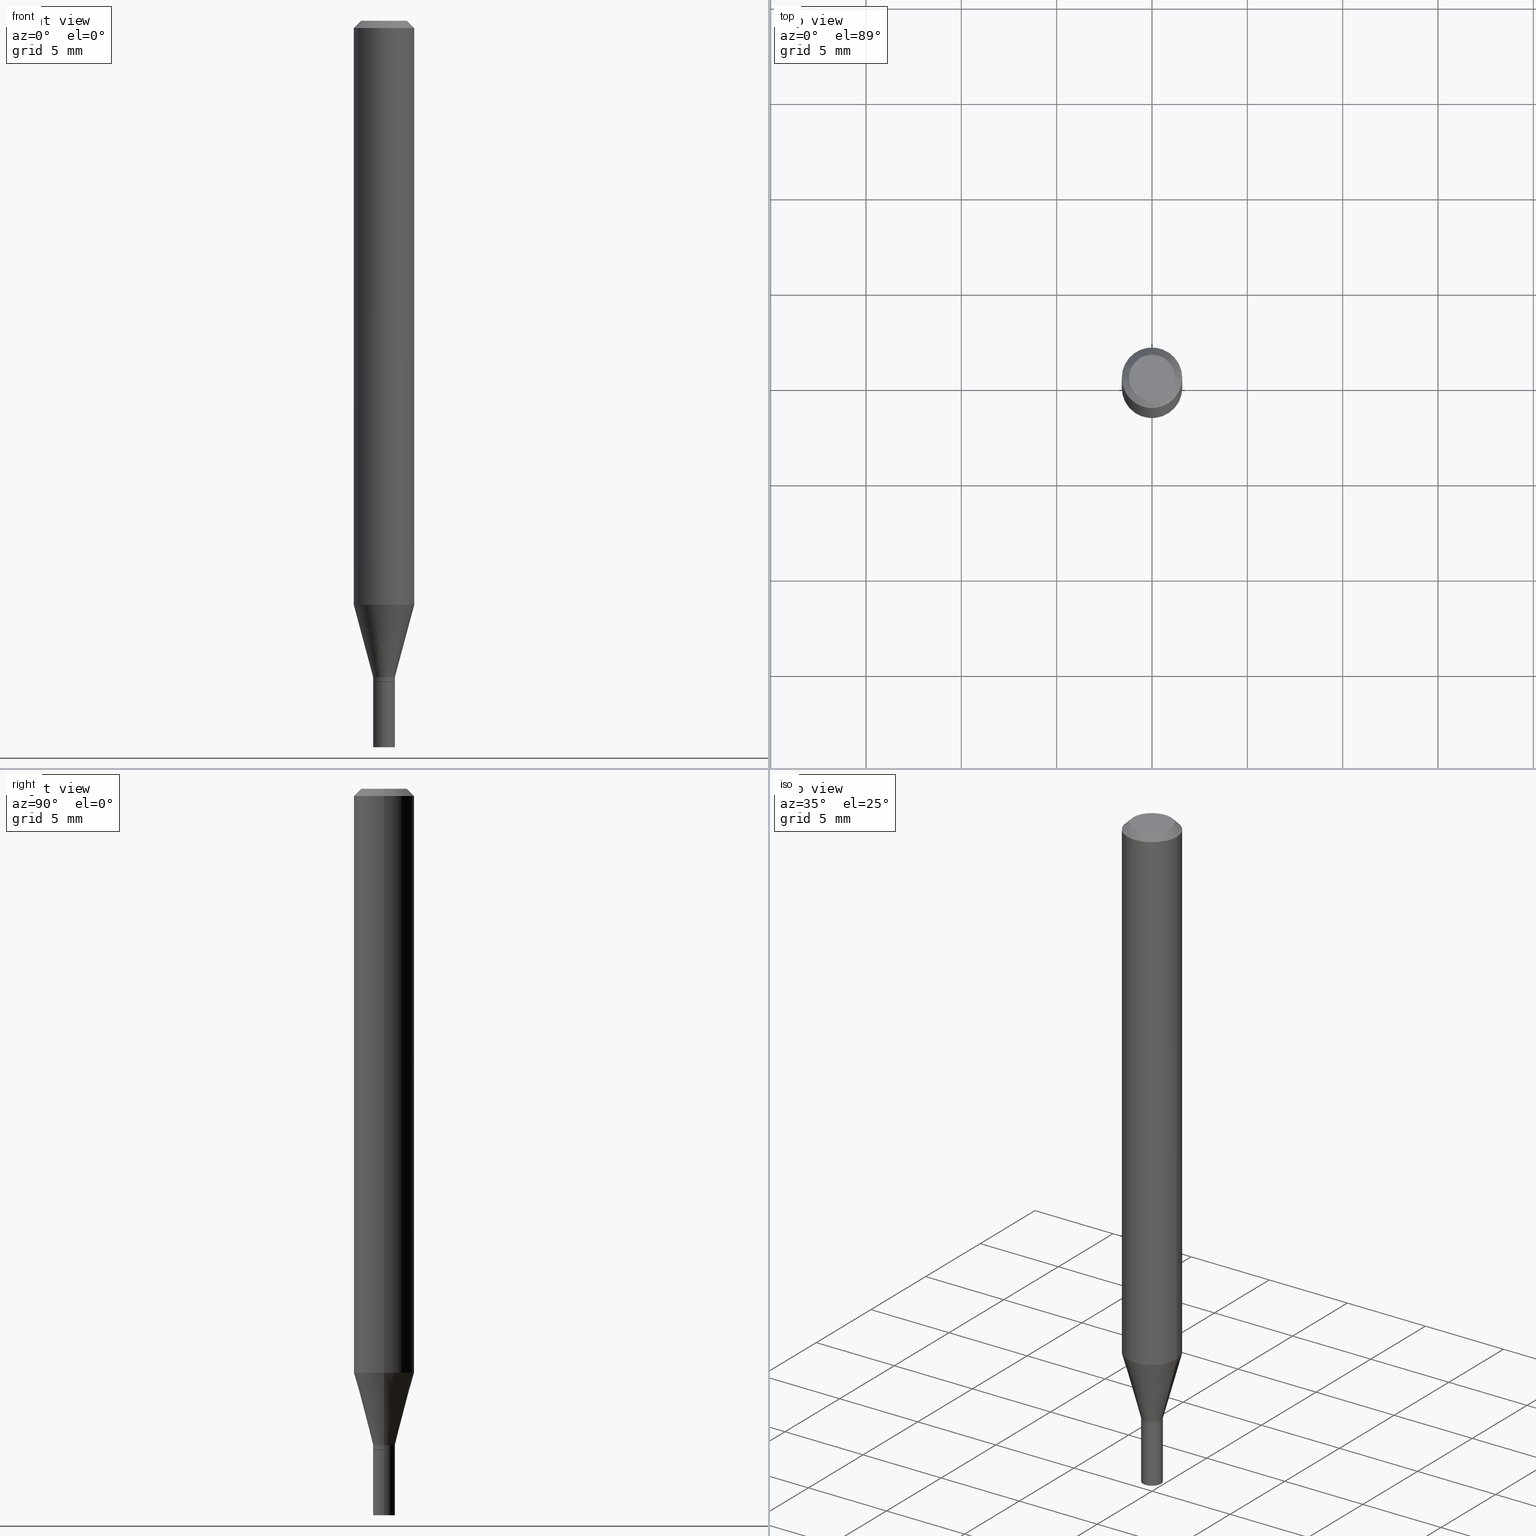
[diagram: canonical four-view strip — front | top / right | iso, engineering-drawing reading convention]
A machine part, canonical four-view strip (front | top / right | iso — engineering-drawing reading convention). The complete STEP part file that produces these views, byte-faithful:
ISO-10303-21;
HEADER;
FILE_DESCRIPTION (( 'STEP AP203' ),
    '1' );
FILE_NAME ('00554.STEP',
    '2024-03-19T21:40:30',
    ( '' ),
    ( '' ),
    'SwSTEP 2.0',
    'SolidWorks 2023',
    '' );
FILE_SCHEMA (( 'CONFIG_CONTROL_DESIGN' ));
ENDSEC;

DATA;
#1 = VERTEX_POINT ( 'NONE', #156 ) ;
#2 = PERSON_AND_ORGANIZATION_ROLE ( 'design_supplier' ) ;
#3 = EDGE_CURVE ( 'NONE', #340, #231, #24, .T. ) ;
#4 = ORIENTED_EDGE ( 'NONE', *, *, #193, .T. ) ;
#5 = AXIS2_PLACEMENT_3D ( 'NONE', #267, #11, #194 ) ;
#6 = VECTOR ( 'NONE', #94, 39.37007874015748143 ) ;
#7 = ORIENTED_EDGE ( 'NONE', *, *, #466, .T. ) ;
#8 = EDGE_LOOP ( 'NONE', ( #183, #265, #376, #180 ) ) ;
#9 = CALENDAR_DATE ( 2024, 19, 3 ) ;
#10 = FACE_OUTER_BOUND ( 'NONE', #90, .T. ) ;
#11 = DIRECTION ( 'NONE',  ( -2.445468806185136597E-29, 3.491481338843145583E-15, 1.000000000000000000 ) ) ;
#12 = CONICAL_SURFACE ( 'NONE', #5, 0.02199999999999999872, 0.7853981633974739252 ) ;
#13 = DIRECTION ( 'NONE',  ( -0.7071067811865656694, 7.493145998870420424E-15, 0.7071067811865294761 ) ) ;
#14 = VECTOR ( 'NONE', #192, 39.37007874015747433 ) ;
#15 = EDGE_CURVE ( 'NONE', #231, #340, #145, .T. ) ;
#16 = VERTEX_POINT ( 'NONE', #337 ) ;
#17 = DIRECTION ( 'NONE',  ( 1.000000000000000000, -6.982962677686266711E-15, 4.876176775795935793E-29 ) ) ;
#18 = CARTESIAN_POINT ( 'NONE',  ( 0.02249999999999999917, -4.922988687768834913E-15, -1.364999999999999991 ) ) ;
#19 = CARTESIAN_POINT ( 'NONE',  ( 2.948545679060551070E-29, -4.209741784122813615E-15, -1.205717967697245152 ) ) ;
#20 = ORIENTED_EDGE ( 'NONE', *, *, #79, .T. ) ;
#21 = DATE_TIME_ROLE ( 'classification_date' ) ;
#22 = DIRECTION ( 'NONE',  ( -2.445468806185136597E-29, 3.491481338843145583E-15, 1.000000000000000000 ) ) ;
#23 = PRODUCT ( '00554', '00554', '', ( #331 ) ) ;
#24 = CIRCLE ( 'NONE', #426, 0.02199999999999999872 ) ;
#25 = AXIS2_PLACEMENT_3D ( 'NONE', #61, #172, #422 ) ;
#26 = CARTESIAN_POINT ( 'NONE',  ( 3.338064920442711836E-29, -4.765872027520893280E-15, -1.364999999999999991 ) ) ;
#27 = DIRECTION ( 'NONE',  ( 1.000000000000000000, -6.982962677686249356E-15, 0.000000000000000000 ) ) ;
#28 = APPLICATION_CONTEXT ( 'configuration controlled 3d designs of mechanical parts and assemblies' ) ;
#29 = DIRECTION ( 'NONE',  ( -2.445468806185136597E-29, 3.491481338843145583E-15, 1.000000000000000000 ) ) ;
#30 = DIRECTION ( 'NONE',  ( -2.445468806185136597E-29, 3.491481338843145583E-15, 1.000000000000000000 ) ) ;
#31 = DESIGN_CONTEXT ( 'detailed design', #176, 'design' ) ;
#32 = ORIENTED_EDGE ( 'NONE', *, *, #263, .T. ) ;
#33 = ADVANCED_FACE ( 'NONE', ( #115 ), #262, .T. ) ;
#34 = AXIS2_PLACEMENT_3D ( 'NONE', #19, #447, #444 ) ;
#35 = ORIENTED_EDGE ( 'NONE', *, *, #175, .T. ) ;
#36 = APPROVAL ( #182, 'UNSPECIFIED' ) ;
#37 = ORIENTED_EDGE ( 'NONE', *, *, #160, .T. ) ;
#38 = ORIENTED_EDGE ( 'NONE', *, *, #358, .F. ) ;
#39 = APPROVAL_STATUS ( 'not_yet_approved' ) ;
#40 = VERTEX_POINT ( 'NONE', #381 ) ;
#41 = APPROVAL_DATE_TIME ( #442, #154 ) ;
#42 = CC_DESIGN_PERSON_AND_ORGANIZATION_ASSIGNMENT ( #259, #463, ( #23 ) ) ;
#43 = VERTEX_POINT ( 'NONE', #334 ) ;
#44 = LENGTH_MEASURE_WITH_UNIT ( LENGTH_MEASURE( 0.02539999999999999897 ), #330 );
#45 = LOCAL_TIME ( 17, 40, 30.00000000000000000, #48 ) ;
#46 = CC_DESIGN_SECURITY_CLASSIFICATION ( #386, ( #102 ) ) ;
#47 = ORIENTED_EDGE ( 'NONE', *, *, #466, .F. ) ;
#48 = COORDINATED_UNIVERSAL_TIME_OFFSET ( 5, 0, .BEHIND. ) ;
#49 = CARTESIAN_POINT ( 'NONE',  ( 3.668203209277705088E-31, -5.237222008264718399E-17, -0.01499999999999999944 ) ) ;
#50 = ORIENTED_EDGE ( 'NONE', *, *, #341, .T. ) ;
#51 = DIRECTION ( 'NONE',  ( -2.438088387897960049E-29, 3.491481338843145188E-15, 1.000000000000000000 ) ) ;
#52 = FACE_OUTER_BOUND ( 'NONE', #141, .T. ) ;
#53 = CIRCLE ( 'NONE', #336, 0.06250000000000000000 ) ;
#54 = DIRECTION ( 'NONE',  ( 1.000000000000000000, -6.982962677686265922E-15, 4.876176775795935793E-29 ) ) ;
#55 = CARTESIAN_POINT ( 'NONE',  ( -0.06250000000000001388, -3.765652574272750998E-15, -1.205717967697245152 ) ) ;
#56 = PLANE ( 'NONE',  #67 ) ;
#57 = CYLINDRICAL_SURFACE ( 'NONE', #238, 0.06250000000000000000 ) ;
#58 = FACE_OUTER_BOUND ( 'NONE', #134, .T. ) ;
#59 = PLANE ( 'NONE',  #461 ) ;
#60 = FACE_OUTER_BOUND ( 'NONE', #8, .T. ) ;
#61 = CARTESIAN_POINT ( 'NONE',  ( 3.668203209277705088E-31, -5.237222008264718399E-17, -0.01499999999999999944 ) ) ;
#62 = ADVANCED_FACE ( 'NONE', ( #122 ), #57, .T. ) ;
#63 = LINE ( 'NONE', #260, #328 ) ;
#64 = DIRECTION ( 'NONE',  ( -0.7071067811865420216, 2.468850131082199474E-15, -0.7071067811865530128 ) ) ;
#65 = CARTESIAN_POINT ( 'NONE',  ( 3.336842186039619034E-29, -4.764126286851473355E-15, -1.364500000000000046 ) ) ;
#66 = CLOSED_SHELL ( 'NONE', ( #374, #299, #440, #446 ) ) ;
#67 = AXIS2_PLACEMENT_3D ( 'NONE', #302, #164, #450 ) ;
#68 = VERTEX_POINT ( 'NONE', #55 ) ;
#69 = ORIENTED_EDGE ( 'NONE', *, *, #235, .F. ) ;
#70 = CIRCLE ( 'NONE', #445, 0.02249999999999992284 ) ;
#71 = ORIENTED_EDGE ( 'NONE', *, *, #124, .T. ) ;
#72 = VERTEX_POINT ( 'NONE', #18 ) ;
#73 = DIRECTION ( 'NONE',  ( 0.2588190451025213501, 1.565188264969621968E-15, 0.9659258262890682012 ) ) ;
#74 = EDGE_LOOP ( 'NONE', ( #435, #364, #443, #448 ) ) ;
#75 = DIRECTION ( 'NONE',  ( -2.445468806185136597E-29, 3.491481338843145583E-15, 1.000000000000000000 ) ) ;
#76 = DIRECTION ( 'NONE',  ( 0.000000000000000000, 0.000000000000000000, 1.000000000000000000 ) ) ;
#77 = VECTOR ( 'NONE', #64, 39.37007874015748143 ) ;
#78 = DIRECTION ( 'NONE',  ( 1.000000000000000000, -6.982962677686266711E-15, 4.876176775795935793E-29 ) ) ;
#79 = EDGE_CURVE ( 'NONE', #108, #318, #225, .T. ) ;
#80 = DATE_TIME_ROLE ( 'creation_date' ) ;
#81 = DIRECTION ( 'NONE',  ( 1.000000000000000000, -6.982962677686265922E-15, 4.876176775795935793E-29 ) ) ;
#82 = CARTESIAN_POINT ( 'NONE',  ( 0.000000000000000000, 0.000000000000000000, 0.000000000000000000 ) ) ;
#83 = CC_DESIGN_DATE_AND_TIME_ASSIGNMENT ( #123, #21, ( #386 ) ) ;
#84 = DIRECTION ( 'NONE',  ( 1.000000000000000000, -6.982962677686269077E-15, 0.000000000000000000 ) ) ;
#85 = ORIENTED_EDGE ( 'NONE', *, *, #399, .F. ) ;
#86 = DIRECTION ( 'NONE',  ( -2.445468806185136597E-29, 3.491481338843145583E-15, 1.000000000000000000 ) ) ;
#87 = CIRCLE ( 'NONE', #418, 0.02249999999999991937 ) ;
#88 = DIRECTION ( 'NONE',  ( 1.000000000000000000, -6.982962677686270655E-15, 0.000000000000000000 ) ) ;
#89 = CARTESIAN_POINT ( 'NONE',  ( 3.668203209277704895E-29, -5.237222008264718177E-15, -1.500000000000000222 ) ) ;
#90 = EDGE_LOOP ( 'NONE', ( #465, #283 ) ) ;
#91 = CARTESIAN_POINT ( 'NONE',  ( 3.338064920442711836E-29, -4.765872027520893280E-15, -1.364999999999999991 ) ) ;
#92 = CARTESIAN_POINT ( 'NONE',  ( 0.000000000000000000, 0.000000000000000000, 0.000000000000000000 ) ) ;
#93 = CARTESIAN_POINT ( 'NONE',  ( 0.000000000000000000, 0.000000000000000000, 0.000000000000000000 ) ) ;
#94 = DIRECTION ( 'NONE',  ( -2.445468806185136877E-29, 3.491481338843145188E-15, 1.000000000000000000 ) ) ;
#95 = DIMENSIONAL_EXPONENTS ( 1.000000000000000000, 0.000000000000000000, 0.000000000000000000, 0.000000000000000000, 0.000000000000000000, 0.000000000000000000, 0.000000000000000000 ) ;
#96 = CYLINDRICAL_SURFACE ( 'NONE', #178, 0.06250000000000000000 ) ;
#97 = ADVANCED_FACE ( 'NONE', ( #52 ), #451, .T. ) ;
#98 = FACE_OUTER_BOUND ( 'NONE', #177, .T. ) ;
#99 = CARTESIAN_POINT ( 'NONE',  ( 3.313610232380860851E-29, -4.730957214132463209E-15, -1.355000000000000204 ) ) ;
#100 = LINE ( 'NONE', #462, #185 ) ;
#101 = PERSON_AND_ORGANIZATION ( #342, #393 ) ;
#102 = PRODUCT_DEFINITION_FORMATION_WITH_SPECIFIED_SOURCE ( 'ANY', '', #23, .NOT_KNOWN. ) ;
#103 = PRODUCT_RELATED_PRODUCT_CATEGORY ( 'detail', '', ( #23 ) ) ;
#104 = EDGE_LOOP ( 'NONE', ( #415, #50, #437, #360 ) ) ;
#105 = ADVANCED_FACE ( 'NONE', ( #126 ), #12, .T. ) ;
#106 = EDGE_LOOP ( 'NONE', ( #152, #433, #7, #306 ) ) ;
#107 = AXIS2_PLACEMENT_3D ( 'NONE', #227, #274, #222 ) ;
#108 = VERTEX_POINT ( 'NONE', #296 ) ;
#109 = SECURITY_CLASSIFICATION_LEVEL ( 'unclassified' ) ;
#110 = ORIENTED_EDGE ( 'NONE', *, *, #241, .F. ) ;
#111 = APPROVAL_ROLE ( '' ) ;
#112 = VERTEX_POINT ( 'NONE', #159 ) ;
#113 = COORDINATED_UNIVERSAL_TIME_OFFSET ( 5, 0, .BEHIND. ) ;
#114 = EDGE_CURVE ( 'NONE', #68, #108, #53, .T. ) ;
#115 = FACE_OUTER_BOUND ( 'NONE', #165, .T. ) ;
#116 = CC_DESIGN_APPROVAL ( #36, ( #102 ) ) ;
#117 = DIRECTION ( 'NONE',  ( -2.445468806185136597E-29, 3.491481338843145583E-15, 1.000000000000000000 ) ) ;
#118 = EDGE_CURVE ( 'NONE', #439, #356, #268, .T. ) ;
#119 = ORIENTED_EDGE ( 'NONE', *, *, #399, .T. ) ;
#120 = APPROVAL_DATE_TIME ( #449, #284 ) ;
#121 = FACE_OUTER_BOUND ( 'NONE', #106, .T. ) ;
#122 = FACE_OUTER_BOUND ( 'NONE', #362, .T. ) ;
#123 = DATE_AND_TIME ( #133, #270 ) ;
#124 = EDGE_CURVE ( 'NONE', #72, #112, #353, .T. ) ;
#125 = CARTESIAN_POINT ( 'NONE',  ( -0.02249999999999999917, -4.841674902346784228E-15, -1.500000000000000222 ) ) ;
#126 = FACE_OUTER_BOUND ( 'NONE', #104, .T. ) ;
#127 = AXIS2_PLACEMENT_3D ( 'NONE', #385, #135, #317 ) ;
#128 = CARTESIAN_POINT ( 'NONE',  ( -0.02199999999999999872, -4.609552625653671101E-15, -1.364999999999999991 ) ) ;
#129 = ORIENTED_EDGE ( 'NONE', *, *, #278, .T. ) ;
#130 = APPROVAL_STATUS ( 'not_yet_approved' ) ;
#131 = CARTESIAN_POINT ( 'NONE',  ( 3.313610232380860851E-29, -4.730957214132463209E-15, -1.355000000000000204 ) ) ;
#132 = DIRECTION ( 'NONE',  ( -2.445468806185136597E-29, 3.491481338843145583E-15, 1.000000000000000000 ) ) ;
#133 = CALENDAR_DATE ( 2024, 19, 3 ) ;
#134 = EDGE_LOOP ( 'NONE', ( #38, #211 ) ) ;
#135 = DIRECTION ( 'NONE',  ( -2.445468806185136597E-29, 3.491481338843145583E-15, 1.000000000000000000 ) ) ;
#136 = CIRCLE ( 'NONE', #347, 0.02249999999999992284 ) ;
#137 = DIRECTION ( 'NONE',  ( 1.000000000000000000, -6.982962677686245411E-15, 0.000000000000000000 ) ) ;
#138 = CC_DESIGN_PERSON_AND_ORGANIZATION_ASSIGNMENT ( #370, #2, ( #102 ) ) ;
#139 = CARTESIAN_POINT ( 'NONE',  ( 3.313610232380860851E-29, -4.730957214132463209E-15, -1.355000000000000204 ) ) ;
#140 = AXIS2_PLACEMENT_3D ( 'NONE', #49, #295, #411 ) ;
#141 = EDGE_LOOP ( 'NONE', ( #143, #37, #321, #441 ) ) ;
#142 = EDGE_LOOP ( 'NONE', ( #188, #404, #291, #110 ) ) ;
#143 = ORIENTED_EDGE ( 'NONE', *, *, #247, .T. ) ;
#144 =( CONVERSION_BASED_UNIT ( 'INCH', #44 ) LENGTH_UNIT ( ) NAMED_UNIT ( #95 ) );
#145 = CIRCLE ( 'NONE', #146, 0.02199999999999999872 ) ;
#146 = AXIS2_PLACEMENT_3D ( 'NONE', #293, #307, #257 ) ;
#147 = AXIS2_PLACEMENT_3D ( 'NONE', #230, #51, #54 ) ;
#148 = EDGE_LOOP ( 'NONE', ( #323, #4, #329, #85 ) ) ;
#149 = PERSON_AND_ORGANIZATION_ROLE ( 'creator' ) ;
#150 = ORIENTED_EDGE ( 'NONE', *, *, #355, .F. ) ;
#151 = APPLICATION_PROTOCOL_DEFINITION ( 'international standard', 'config_control_design', 1994, #28 ) ;
#152 = ORIENTED_EDGE ( 'NONE', *, *, #429, .F. ) ;
#153 = DIRECTION ( 'NONE',  ( 1.000000000000000000, 0.000000000000000000, 0.000000000000000000 ) ) ;
#154 = APPROVAL ( #39, 'UNSPECIFIED' ) ;
#155 = CARTESIAN_POINT ( 'NONE',  ( 3.338064920442711836E-29, -4.765872027520893280E-15, -1.364999999999999991 ) ) ;
#156 = CARTESIAN_POINT ( 'NONE',  ( -0.06250000000000000000, -1.686967792252667731E-15, -0.01499999999999999944 ) ) ;
#157 = CC_DESIGN_APPROVAL ( #284, ( #386 ) ) ;
#158 = DIRECTION ( 'NONE',  ( 1.000000000000000000, -6.982962677686248567E-15, 0.000000000000000000 ) ) ;
#159 = CARTESIAN_POINT ( 'NONE',  ( -0.02249999999999999917, -4.841674902346784228E-15, -1.364999999999999991 ) ) ;
#160 = EDGE_CURVE ( 'NONE', #16, #356, #456, .T. ) ;
#161 = APPROVAL_ROLE ( '' ) ;
#162 = CARTESIAN_POINT ( 'NONE',  ( -0.02249999999999991937, -4.168368836429595565E-15, -1.355000000000000204 ) ) ;
#163 = DIRECTION ( 'NONE',  ( -2.445468806185136877E-29, 3.491481338843145188E-15, 1.000000000000000000 ) ) ;
#164 = DIRECTION ( 'NONE',  ( 2.438088387897960049E-29, -3.491481338843145188E-15, -1.000000000000000000 ) ) ;
#165 = EDGE_LOOP ( 'NONE', ( #248, #129, #402, #357 ) ) ;
#166 = LOCAL_TIME ( 17, 40, 30.00000000000000000, #113 ) ;
#167 = PLANE ( 'NONE',  #147 ) ;
#168 = DIRECTION ( 'NONE',  ( 0.7071067811865420216, -7.319954787623237113E-15, -0.7071067811865530128 ) ) ;
#169 = DIRECTION ( 'NONE',  ( 0.7071067811865656694, -2.468850131082446387E-15, 0.7071067811865294761 ) ) ;
#170 = PERSON_AND_ORGANIZATION ( #342, #393 ) ;
#171 = ADVANCED_FACE ( 'NONE', ( #428 ), #460, .T. ) ;
#172 = DIRECTION ( 'NONE',  ( 2.445468806185136597E-29, -3.491481338843145583E-15, -1.000000000000000000 ) ) ;
#173 = CARTESIAN_POINT ( 'NONE',  ( 0.02199999999999999872, -4.919497206429991117E-15, -1.364999999999999991 ) ) ;
#174 = CARTESIAN_POINT ( 'NONE',  ( -0.06250000000000000000, 3.840629472727444916E-16, -0.01499999999999999944 ) ) ;
#175 = EDGE_CURVE ( 'NONE', #397, #216, #375, .T. ) ;
#176 = APPLICATION_CONTEXT ( 'configuration controlled 3d designs of mechanical parts and assemblies' ) ;
#177 = EDGE_LOOP ( 'NONE', ( #454, #35, #119, #344 ) ) ;
#178 = AXIS2_PLACEMENT_3D ( 'NONE', #237, #29, #311 ) ;
#179 = LOCAL_TIME ( 17, 40, 30.00000000000000000, #312 ) ;
#180 = ORIENTED_EDGE ( 'NONE', *, *, #355, .T. ) ;
#181 = ORIENTED_EDGE ( 'NONE', *, *, #278, .F. ) ;
#182 = APPROVAL_STATUS ( 'not_yet_approved' ) ;
#183 = ORIENTED_EDGE ( 'NONE', *, *, #434, .F. ) ;
#184 = CALENDAR_DATE ( 2024, 19, 3 ) ;
#185 = VECTOR ( 'NONE', #390, 39.37007874015748143 ) ;
#186 = CIRCLE ( 'NONE', #229, 0.06250000000000000000 ) ;
#187 = EDGE_CURVE ( 'NONE', #231, #43, #276, .T. ) ;
#188 = ORIENTED_EDGE ( 'NONE', *, *, #263, .F. ) ;
#189 = ADVANCED_BREP_SHAPE_REPRESENTATION ( '00554', ( #396, #409, #453 ), #432 ) ;
#190 = PRODUCT_DEFINITION ( 'UNKNOWN', '', #102, #31 ) ;
#191 = DIRECTION ( 'NONE',  ( -2.445468806185136877E-29, 3.491481338843145188E-15, 1.000000000000000000 ) ) ;
#192 = DIRECTION ( 'NONE',  ( -0.2588190451025213501, 5.211531920934551042E-15, 0.9659258262890682012 ) ) ;
#193 = EDGE_CURVE ( 'NONE', #397, #112, #100, .T. ) ;
#194 = DIRECTION ( 'NONE',  ( 1.000000000000000000, -6.982962677686245411E-15, 0.000000000000000000 ) ) ;
#195 = DIRECTION ( 'NONE',  ( -2.445468806185136597E-29, 3.491481338843145583E-15, 1.000000000000000000 ) ) ;
#196 = DIRECTION ( 'NONE',  ( -2.438088387897960049E-29, 3.491481338843145188E-15, 1.000000000000000000 ) ) ;
#197 = ORIENTED_EDGE ( 'NONE', *, *, #217, .T. ) ;
#198 = DIRECTION ( 'NONE',  ( -2.445468806185136597E-29, 3.491481338843145583E-15, 1.000000000000000000 ) ) ;
#199 = LINE ( 'NONE', #221, #251 ) ;
#200 = CARTESIAN_POINT ( 'NONE',  ( -0.04749999999999999362, 3.578768372314215436E-16, 2.340532281875096216E-16 ) ) ;
#201 = ADVANCED_FACE ( 'NONE', ( #60 ), #308, .T. ) ;
#202 = APPROVAL_PERSON_ORGANIZATION ( #101, #36, #326 ) ;
#203 = DIRECTION ( 'NONE',  ( 1.000000000000000000, -6.982962677686248567E-15, 0.000000000000000000 ) ) ;
#204 = DIRECTION ( 'NONE',  ( 1.000000000000000000, -6.982962677686249356E-15, 0.000000000000000000 ) ) ;
#205 = ADVANCED_FACE ( 'NONE', ( #350 ), #96, .T. ) ;
#206 = DIRECTION ( 'NONE',  ( 1.000000000000000000, -6.982962677686267499E-15, 4.852736867747366768E-29 ) ) ;
#207 = AXIS2_PLACEMENT_3D ( 'NONE', #99, #30, #27 ) ;
#208 = AXIS2_PLACEMENT_3D ( 'NONE', #91, #132, #346 ) ;
#209 = FACE_OUTER_BOUND ( 'NONE', #290, .T. ) ;
#210 = CONICAL_SURFACE ( 'NONE', #140, 0.06250000000000000000, 0.7853981633974405074 ) ;
#211 = ORIENTED_EDGE ( 'NONE', *, *, #175, .F. ) ;
#212 = VERTEX_POINT ( 'NONE', #200 ) ;
#213 = AXIS2_PLACEMENT_3D ( 'NONE', #131, #383, #452 ) ;
#214 = ORIENTED_EDGE ( 'NONE', *, *, #118, .T. ) ;
#215 = CC_DESIGN_DATE_AND_TIME_ASSIGNMENT ( #363, #80, ( #190 ) ) ;
#216 = VERTEX_POINT ( 'NONE', #313 ) ;
#217 = EDGE_CURVE ( 'NONE', #112, #72, #282, .T. ) ;
#218 = ORIENTED_EDGE ( 'NONE', *, *, #3, .T. ) ;
#219 = CARTESIAN_POINT ( 'NONE',  ( 0.02249999999999991937, -4.888073874380403263E-15, -1.355000000000000204 ) ) ;
#220 = DIRECTION ( 'NONE',  ( -2.445468806185136597E-29, 3.491481338843145583E-15, 1.000000000000000000 ) ) ;
#221 = CARTESIAN_POINT ( 'NONE',  ( 0.02249999999999991937, -4.888073874380403263E-15, -1.355000000000000204 ) ) ;
#222 = DIRECTION ( 'NONE',  ( 1.000000000000000000, -6.982962677686265922E-15, 4.876176775795935793E-29 ) ) ;
#223 = PERSON_AND_ORGANIZATION ( #342, #393 ) ;
#224 = LINE ( 'NONE', #371, #14 ) ;
#225 = LINE ( 'NONE', #367, #288 ) ;
#226 = FACE_OUTER_BOUND ( 'NONE', #148, .T. ) ;
#227 = CARTESIAN_POINT ( 'NONE',  ( 0.000000000000000000, 0.000000000000000000, 0.000000000000000000 ) ) ;
#228 = CLOSED_SHELL ( 'NONE', ( #97, #105, #286, #205, #171, #332, #62, #201, #391, #413, #254, #33 ) ) ;
#229 = AXIS2_PLACEMENT_3D ( 'NONE', #414, #198, #423 ) ;
#230 = CARTESIAN_POINT ( 'NONE',  ( 3.576687321579069994E-29, -5.368277968210015545E-15, -1.500000000000000222 ) ) ;
#231 = VERTEX_POINT ( 'NONE', #173 ) ;
#232 = CARTESIAN_POINT ( 'NONE',  ( 3.313610232380860851E-29, -4.730957214132463209E-15, -1.355000000000000204 ) ) ;
#233 = DIRECTION ( 'NONE',  ( -1.000000000000000000, 6.982962677686265922E-15, -4.876176775795935793E-29 ) ) ;
#234 = DIRECTION ( 'NONE',  ( -2.445468806185136597E-29, 3.491481338843145583E-15, 1.000000000000000000 ) ) ;
#235 = EDGE_CURVE ( 'NONE', #68, #1, #388, .T. ) ;
#236 = CARTESIAN_POINT ( 'NONE',  ( 1.571166602479743698E-16, 0.02249999999999523215, -1.364999999999999991 ) ) ;
#237 = CARTESIAN_POINT ( 'NONE',  ( 0.000000000000000000, 0.000000000000000000, 0.000000000000000000 ) ) ;
#238 = AXIS2_PLACEMENT_3D ( 'NONE', #82, #75, #78 ) ;
#239 = AXIS2_PLACEMENT_3D ( 'NONE', #240, #459, #137 ) ;
#240 = CARTESIAN_POINT ( 'NONE',  ( 3.338064920442711836E-29, -4.765872027520893280E-15, -1.364999999999999991 ) ) ;
#241 = EDGE_CURVE ( 'NONE', #212, #1, #458, .T. ) ;
#242 = DIRECTION ( 'NONE',  ( 2.438088387897960049E-29, -3.491481338843145188E-15, -1.000000000000000000 ) ) ;
#243 = DIRECTION ( 'NONE',  ( -2.445468806185136597E-29, 3.491481338843145583E-15, 1.000000000000000000 ) ) ;
#244 = CYLINDRICAL_SURFACE ( 'NONE', #365, 0.02249999999999999917 ) ;
#245 = APPROVAL_PERSON_ORGANIZATION ( #361, #154, #111 ) ;
#246 =( NAMED_UNIT ( * ) PLANE_ANGLE_UNIT ( ) SI_UNIT ( $, .RADIAN. ) );
#247 = EDGE_CURVE ( 'NONE', #43, #16, #136, .T. ) ;
#248 = ORIENTED_EDGE ( 'NONE', *, *, #160, .F. ) ;
#249 = ORIENTED_EDGE ( 'NONE', *, *, #341, .F. ) ;
#250 = AXIS2_PLACEMENT_3D ( 'NONE', #139, #384, #204 ) ;
#251 = VECTOR ( 'NONE', #73, 39.37007874015747433 ) ;
#252 = ORIENTED_EDGE ( 'NONE', *, *, #187, .T. ) ;
#253 =( NAMED_UNIT ( * ) SI_UNIT ( $, .STERADIAN. ) SOLID_ANGLE_UNIT ( ) );
#254 = ADVANCED_FACE ( 'NONE', ( #348 ), #359, .T. ) ;
#255 = ORIENTED_EDGE ( 'NONE', *, *, #315, .T. ) ;
#256 = APPROVAL_DATE_TIME ( #294, #36 ) ;
#257 = DIRECTION ( 'NONE',  ( 1.000000000000000000, -6.982962677686245411E-15, 0.000000000000000000 ) ) ;
#258 = LOCAL_TIME ( 17, 40, 30.00000000000000000, #406 ) ;
#259 = PERSON_AND_ORGANIZATION ( #342, #393 ) ;
#260 = CARTESIAN_POINT ( 'NONE',  ( 0.06250000000000000000, -4.811533449433679005E-16, -0.01499999999999999944 ) ) ;
#261 = DIRECTION ( 'NONE',  ( -2.445468806185136877E-29, 3.491481338843145188E-15, 1.000000000000000000 ) ) ;
#262 = CYLINDRICAL_SURFACE ( 'NONE', #107, 0.02249999999999992284 ) ;
#263 = EDGE_CURVE ( 'NONE', #40, #212, #354, .T. ) ;
#264 = CARTESIAN_POINT ( 'NONE',  ( 3.668203209277705088E-31, -5.237222008264718399E-17, -0.01499999999999999944 ) ) ;
#265 = ORIENTED_EDGE ( 'NONE', *, *, #315, .F. ) ;
#266 = LINE ( 'NONE', #333, #316 ) ;
#267 = CARTESIAN_POINT ( 'NONE',  ( 3.338064920442711836E-29, -4.765872027520893280E-15, -1.364999999999999991 ) ) ;
#268 = CIRCLE ( 'NONE', #207, 0.02249999999999991937 ) ;
#269 = CONICAL_SURFACE ( 'NONE', #213, 0.02249999999999991937, 0.2617993877991500740 ) ;
#270 = LOCAL_TIME ( 17, 40, 30.00000000000000000, #378 ) ;
#271 = CARTESIAN_POINT ( 'NONE',  ( 0.06250000000000000000, -4.888073874380388472E-16, -0.01499999999999999944 ) ) ;
#272 = EDGE_CURVE ( 'NONE', #43, #439, #352, .T. ) ;
#273 = DIRECTION ( 'NONE',  ( 1.000000000000000000, -6.982962677686266711E-15, 4.876176775795935793E-29 ) ) ;
#274 = DIRECTION ( 'NONE',  ( -2.445468806185136597E-29, 3.491481338843145583E-15, 1.000000000000000000 ) ) ;
#275 = DIRECTION ( 'NONE',  ( -2.445468806185136597E-29, 3.491481338843145583E-15, 1.000000000000000000 ) ) ;
#276 = LINE ( 'NONE', #277, #392 ) ;
#277 = CARTESIAN_POINT ( 'NONE',  ( 0.02199999999999999872, -4.919497206429991117E-15, -1.364999999999999991 ) ) ;
#278 = EDGE_CURVE ( 'NONE', #16, #43, #70, .T. ) ;
#279 = CIRCLE ( 'NONE', #438, 0.06250000000000000000 ) ;
#280 = CARTESIAN_POINT ( 'NONE',  ( -5.723698685194923234E-45, 8.171924785126947293E-31, 2.340532281875119882E-16 ) ) ;
#281 = DIRECTION ( 'NONE',  ( 1.000000000000000000, -6.982962677686269077E-15, 0.000000000000000000 ) ) ;
#282 = CIRCLE ( 'NONE', #208, 0.02249999999999999917 ) ;
#283 = ORIENTED_EDGE ( 'NONE', *, *, #3, .F. ) ;
#284 = APPROVAL ( #130, 'UNSPECIFIED' ) ;
#285 = ORIENTED_EDGE ( 'NONE', *, *, #114, .T. ) ;
#286 = ADVANCED_FACE ( 'NONE', ( #298 ), #210, .T. ) ;
#287 = ORIENTED_EDGE ( 'NONE', *, *, #429, .T. ) ;
#288 = VECTOR ( 'NONE', #163, 39.37007874015748143 ) ;
#289 = AXIS2_PLACEMENT_3D ( 'NONE', #280, #243, #206 ) ;
#290 = EDGE_LOOP ( 'NONE', ( #71, #197 ) ) ;
#291 = ORIENTED_EDGE ( 'NONE', *, *, #349, .T. ) ;
#292 = APPLICATION_PROTOCOL_DEFINITION ( 'international standard', 'config_control_design', 1994, #176 ) ;
#293 = CARTESIAN_POINT ( 'NONE',  ( 3.338064920442711836E-29, -4.765872027520893280E-15, -1.364999999999999991 ) ) ;
#294 = DATE_AND_TIME ( #9, #258 ) ;
#295 = DIRECTION ( 'NONE',  ( 2.445468806185136597E-29, -3.491481338843145583E-15, -1.000000000000000000 ) ) ;
#296 = CARTESIAN_POINT ( 'NONE',  ( 0.06250000000000001388, -4.646176951478205284E-15, -1.205717967697245152 ) ) ;
#297 = VECTOR ( 'NONE', #261, 39.37007874015748143 ) ;
#298 = FACE_OUTER_BOUND ( 'NONE', #142, .T. ) ;
#299 = ADVANCED_FACE ( 'NONE', ( #58 ), #167, .F. ) ;
#300 = DIRECTION ( 'NONE',  ( -2.445468806185136597E-29, 3.491481338843145583E-15, 1.000000000000000000 ) ) ;
#301 = PERSON_AND_ORGANIZATION_ROLE ( 'classification_officer' ) ;
#302 = CARTESIAN_POINT ( 'NONE',  ( 3.316907271900976096E-16, 0.04749999999999999362, -4.881874950129340235E-17 ) ) ;
#303 = DIRECTION ( 'NONE',  ( 1.000000000000000000, -6.982962677686265922E-15, 4.876176775795935793E-29 ) ) ;
#304 = CALENDAR_DATE ( 2024, 19, 3 ) ;
#305 = DIRECTION ( 'NONE',  ( 1.000000000000000000, -6.982962677686267499E-15, 4.852736867747366768E-29 ) ) ;
#306 = ORIENTED_EDGE ( 'NONE', *, *, #114, .F. ) ;
#307 = DIRECTION ( 'NONE',  ( -2.445468806185136597E-29, 3.491481338843145583E-15, 1.000000000000000000 ) ) ;
#308 = CONICAL_SURFACE ( 'NONE', #25, 0.06250000000000000000, 0.7853981633974405074 ) ;
#309 = CC_DESIGN_APPROVAL ( #154, ( #190 ) ) ;
#310 = CARTESIAN_POINT ( 'NONE',  ( -0.02199999999999999872, -4.606903398479560689E-15, -1.364999999999999991 ) ) ;
#311 = DIRECTION ( 'NONE',  ( 1.000000000000000000, -6.982962677686266711E-15, 4.876176775795935793E-29 ) ) ;
#312 = COORDINATED_UNIVERSAL_TIME_OFFSET ( 5, 0, .BEHIND. ) ;
#313 = CARTESIAN_POINT ( 'NONE',  ( 0.02249999999999999917, -5.394338668512659809E-15, -1.500000000000000222 ) ) ;
#314 = DIRECTION ( 'NONE',  ( -2.445468806185136597E-29, 3.491481338843145583E-15, 1.000000000000000000 ) ) ;
#315 = EDGE_CURVE ( 'NONE', #212, #40, #377, .T. ) ;
#316 = VECTOR ( 'NONE', #191, 39.37007874015748143 ) ;
#317 = DIRECTION ( 'NONE',  ( 1.000000000000000000, -6.982962677686269077E-15, 0.000000000000000000 ) ) ;
#318 = VERTEX_POINT ( 'NONE', #271 ) ;
#319 = EDGE_LOOP ( 'NONE', ( #255, #32 ) ) ;
#320 = VECTOR ( 'NONE', #13, 39.37007874015748143 ) ;
#321 = ORIENTED_EDGE ( 'NONE', *, *, #118, .F. ) ;
#322 = EDGE_CURVE ( 'NONE', #108, #68, #427, .T. ) ;
#323 = ORIENTED_EDGE ( 'NONE', *, *, #358, .T. ) ;
#324 = PERSON_AND_ORGANIZATION_ROLE ( 'creator' ) ;
#325 = EDGE_LOOP ( 'NONE', ( #249, #218, #252, #181 ) ) ;
#326 = APPROVAL_ROLE ( '' ) ;
#327 = VECTOR ( 'NONE', #425, 39.37007874015748143 ) ;
#328 = VECTOR ( 'NONE', #168, 39.37007874015748143 ) ;
#329 = ORIENTED_EDGE ( 'NONE', *, *, #124, .F. ) ;
#330 =( LENGTH_UNIT ( ) NAMED_UNIT ( * ) SI_UNIT ( $, .METRE. ) );
#331 = MECHANICAL_CONTEXT ( 'NONE', #28, 'mechanical' ) ;
#332 = ADVANCED_FACE ( 'NONE', ( #121 ), #269, .T. ) ;
#333 = CARTESIAN_POINT ( 'NONE',  ( 0.02249999999999999917, -1.571166602479409911E-16, 1.097139774554085483E-30 ) ) ;
#334 = CARTESIAN_POINT ( 'NONE',  ( 0.02249999999999992284, -4.921242947099412620E-15, -1.364500000000000046 ) ) ;
#335 = CARTESIAN_POINT ( 'NONE',  ( -5.723698685194923234E-45, 8.171924785126947293E-31, 2.340532281875119882E-16 ) ) ;
#336 = AXIS2_PLACEMENT_3D ( 'NONE', #419, #300, #88 ) ;
#337 = CARTESIAN_POINT ( 'NONE',  ( -0.02249999999999992284, -4.604254171305449488E-15, -1.364500000000000046 ) ) ;
#338 = CIRCLE ( 'NONE', #464, 0.02249999999999999917 ) ;
#339 = CARTESIAN_POINT ( 'NONE',  ( 3.336842186039619034E-29, -4.764126286851473355E-15, -1.364500000000000046 ) ) ;
#340 = VERTEX_POINT ( 'NONE', #310 ) ;
#341 = EDGE_CURVE ( 'NONE', #340, #16, #455, .T. ) ;
#342 = PERSON ( 'UNSPECIFIED', 'UNSPECIFIED', 'UNSPECIFIED', ('UNSPECIFIED'), ('UNSPECIFIED'), ('UNSPECIFIED') ) ;
#343 = CARTESIAN_POINT ( 'NONE',  ( 0.02249999999999992284, -1.571166602479404488E-16, 1.097139774554081805E-30 ) ) ;
#344 = ORIENTED_EDGE ( 'NONE', *, *, #217, .F. ) ;
#345 = DIRECTION ( 'NONE',  ( -2.445468806185136597E-29, 3.491481338843145583E-15, 1.000000000000000000 ) ) ;
#346 = DIRECTION ( 'NONE',  ( 1.000000000000000000, -6.982962677686269077E-15, 0.000000000000000000 ) ) ;
#347 = AXIS2_PLACEMENT_3D ( 'NONE', #65, #314, #203 ) ;
#348 = FACE_OUTER_BOUND ( 'NONE', #325, .T. ) ;
#349 = EDGE_CURVE ( 'NONE', #318, #1, #279, .T. ) ;
#350 = FACE_OUTER_BOUND ( 'NONE', #74, .T. ) ;
#351 = CC_DESIGN_PERSON_AND_ORGANIZATION_ASSIGNMENT ( #223, #324, ( #102 ) ) ;
#352 = LINE ( 'NONE', #343, #297 ) ;
#353 = CIRCLE ( 'NONE', #400, 0.02249999999999999917 ) ;
#354 = CIRCLE ( 'NONE', #289, 0.04749999999999999362 ) ;
#355 = EDGE_CURVE ( 'NONE', #1, #318, #186, .T. ) ;
#356 = VERTEX_POINT ( 'NONE', #162 ) ;
#357 = ORIENTED_EDGE ( 'NONE', *, *, #387, .F. ) ;
#358 = EDGE_CURVE ( 'NONE', #216, #397, #338, .T. ) ;
#359 = CONICAL_SURFACE ( 'NONE', #239, 0.02199999999999999872, 0.7853981633974739252 ) ;
#360 = ORIENTED_EDGE ( 'NONE', *, *, #187, .F. ) ;
#361 = PERSON_AND_ORGANIZATION ( #342, #393 ) ;
#362 = EDGE_LOOP ( 'NONE', ( #69, #285, #20, #150 ) ) ;
#363 = DATE_AND_TIME ( #184, #166 ) ;
#364 = ORIENTED_EDGE ( 'NONE', *, *, #235, .T. ) ;
#365 = AXIS2_PLACEMENT_3D ( 'NONE', #93, #389, #273 ) ;
#366 = APPROVAL_PERSON_ORGANIZATION ( #170, #284, #161 ) ;
#367 = CARTESIAN_POINT ( 'NONE',  ( 0.06250000000000000000, -4.364351673553916694E-16, 3.047610484872459871E-30 ) ) ;
#368 = FACE_OUTER_BOUND ( 'NONE', #319, .T. ) ;
#369 = DIRECTION ( 'NONE',  ( -2.445468806185136597E-29, 3.491481338843145583E-15, 1.000000000000000000 ) ) ;
#370 = PERSON_AND_ORGANIZATION ( #342, #393 ) ;
#371 = CARTESIAN_POINT ( 'NONE',  ( -0.02249999999999991937, -4.571085098586440920E-15, -1.355000000000000204 ) ) ;
#372 = CARTESIAN_POINT ( 'NONE',  ( 0.000000000000000000, 0.000000000000000000, 0.000000000000000000 ) ) ;
#373 = CYLINDRICAL_SURFACE ( 'NONE', #420, 0.02249999999999999917 ) ;
#374 = ADVANCED_FACE ( 'NONE', ( #226 ), #373, .T. ) ;
#375 = CIRCLE ( 'NONE', #127, 0.02249999999999999917 ) ;
#376 = ORIENTED_EDGE ( 'NONE', *, *, #241, .T. ) ;
#377 = CIRCLE ( 'NONE', #407, 0.04749999999999999362 ) ;
#378 = COORDINATED_UNIVERSAL_TIME_OFFSET ( 5, 0, .BEHIND. ) ;
#379 = DIRECTION ( 'NONE',  ( 1.000000000000000000, -6.982962677686249356E-15, 0.000000000000000000 ) ) ;
#380 = CC_DESIGN_PERSON_AND_ORGANIZATION_ASSIGNMENT ( #403, #149, ( #190 ) ) ;
#381 = CARTESIAN_POINT ( 'NONE',  ( 0.04749999999999999362, -4.035134999187574186E-16, 2.340532281875146013E-16 ) ) ;
#382 = PRODUCT_DEFINITION_SHAPE ( 'NONE', 'NONE',  #190 ) ;
#383 = DIRECTION ( 'NONE',  ( -2.445468806185136597E-29, 3.491481338843145583E-15, 1.000000000000000000 ) ) ;
#384 = DIRECTION ( 'NONE',  ( -2.445468806185136597E-29, 3.491481338843145583E-15, 1.000000000000000000 ) ) ;
#385 = CARTESIAN_POINT ( 'NONE',  ( 3.668203209277704895E-29, -5.237222008264718177E-15, -1.500000000000000222 ) ) ;
#386 = SECURITY_CLASSIFICATION ( '', '', #109 ) ;
#387 = EDGE_CURVE ( 'NONE', #356, #439, #87, .T. ) ;
#388 = LINE ( 'NONE', #424, #6 ) ;
#389 = DIRECTION ( 'NONE',  ( -2.445468806185136597E-29, 3.491481338843145583E-15, 1.000000000000000000 ) ) ;
#390 = DIRECTION ( 'NONE',  ( -2.445468806185136877E-29, 3.491481338843145188E-15, 1.000000000000000000 ) ) ;
#391 = ADVANCED_FACE ( 'NONE', ( #368 ), #56, .F. ) ;
#392 = VECTOR ( 'NONE', #169, 39.37007874015748143 ) ;
#393 = ORGANIZATION ( 'UNSPECIFIED', 'UNSPECIFIED', '' ) ;
#394 = EDGE_LOOP ( 'NONE', ( #214, #287, #398, #47 ) ) ;
#395 = UNCERTAINTY_MEASURE_WITH_UNIT (LENGTH_MEASURE( 1.000000000000000082E-05 ), #144, 'distance_accuracy_value', 'NONE');
#396 = MANIFOLD_SOLID_BREP ( 'Body-Move/Copy2[1]', #66 ) ;
#397 = VERTEX_POINT ( 'NONE', #125 ) ;
#398 = ORIENTED_EDGE ( 'NONE', *, *, #322, .F. ) ;
#399 = EDGE_CURVE ( 'NONE', #216, #72, #266, .T. ) ;
#400 = AXIS2_PLACEMENT_3D ( 'NONE', #26, #234, #281 ) ;
#401 = AXIS2_PLACEMENT_3D ( 'NONE', #155, #196, #81 ) ;
#402 = ORIENTED_EDGE ( 'NONE', *, *, #272, .T. ) ;
#403 = PERSON_AND_ORGANIZATION ( #342, #393 ) ;
#404 = ORIENTED_EDGE ( 'NONE', *, *, #434, .T. ) ;
#405 = PERSON_AND_ORGANIZATION ( #342, #393 ) ;
#406 = COORDINATED_UNIVERSAL_TIME_OFFSET ( 5, 0, .BEHIND. ) ;
#407 = AXIS2_PLACEMENT_3D ( 'NONE', #335, #22, #305 ) ;
#408 = DIRECTION ( 'NONE',  ( 1.000000000000000000, -6.982962677686245411E-15, 0.000000000000000000 ) ) ;
#409 = MANIFOLD_SOLID_BREP ( 'Body-Move/Copy2[2]', #228 ) ;
#410 = CALENDAR_DATE ( 2024, 19, 3 ) ;
#411 = DIRECTION ( 'NONE',  ( -1.000000000000000000, 6.982962677686266711E-15, 0.000000000000000000 ) ) ;
#412 = CARTESIAN_POINT ( 'NONE',  ( 3.338064920442711836E-29, -4.765872027520893280E-15, -1.364999999999999991 ) ) ;
#413 = ADVANCED_FACE ( 'NONE', ( #10 ), #416, .F. ) ;
#414 = CARTESIAN_POINT ( 'NONE',  ( 3.668203209277705088E-31, -5.237222008264718399E-17, -0.01499999999999999944 ) ) ;
#415 = ORIENTED_EDGE ( 'NONE', *, *, #15, .T. ) ;
#416 = PLANE ( 'NONE',  #401 ) ;
#417 = AXIS2_PLACEMENT_3D ( 'NONE', #372, #369, #303 ) ;
#418 = AXIS2_PLACEMENT_3D ( 'NONE', #232, #86, #379 ) ;
#419 = CARTESIAN_POINT ( 'NONE',  ( 2.948545679060551070E-29, -4.209741784122813615E-15, -1.205717967697245152 ) ) ;
#420 = AXIS2_PLACEMENT_3D ( 'NONE', #92, #195, #17 ) ;
#421 = DIRECTION ( 'NONE',  ( 1.000000000000000000, -6.982962677686266711E-15, 0.000000000000000000 ) ) ;
#422 = DIRECTION ( 'NONE',  ( -1.000000000000000000, 6.982962677686266711E-15, 0.000000000000000000 ) ) ;
#423 = DIRECTION ( 'NONE',  ( 1.000000000000000000, -6.982962677686266711E-15, 0.000000000000000000 ) ) ;
#424 = CARTESIAN_POINT ( 'NONE',  ( -0.06250000000000000000, 4.440892098500626162E-16, -3.074334431409316114E-30 ) ) ;
#425 = DIRECTION ( 'NONE',  ( -2.445468806185136877E-29, 3.491481338843145188E-15, 1.000000000000000000 ) ) ;
#426 = AXIS2_PLACEMENT_3D ( 'NONE', #412, #220, #408 ) ;
#427 = CIRCLE ( 'NONE', #34, 0.06250000000000000000 ) ;
#428 = FACE_OUTER_BOUND ( 'NONE', #394, .T. ) ;
#429 = EDGE_CURVE ( 'NONE', #356, #68, #224, .T. ) ;
#430 = CARTESIAN_POINT ( 'NONE',  ( -0.02249999999999992284, 1.598721155460219936E-16, -1.106760395307350101E-30 ) ) ;
#431 = CARTESIAN_POINT ( 'NONE',  ( 0.000000000000000000, 0.000000000000000000, 0.000000000000000000 ) ) ;
#432 =( GEOMETRIC_REPRESENTATION_CONTEXT ( 3 ) GLOBAL_UNCERTAINTY_ASSIGNED_CONTEXT ( ( #395 ) ) GLOBAL_UNIT_ASSIGNED_CONTEXT ( ( #144, #246, #253 ) ) REPRESENTATION_CONTEXT ( 'NONE', 'WORKASPACE' ) );
#433 = ORIENTED_EDGE ( 'NONE', *, *, #387, .T. ) ;
#434 = EDGE_CURVE ( 'NONE', #40, #318, #63, .T. ) ;
#435 = ORIENTED_EDGE ( 'NONE', *, *, #322, .T. ) ;
#436 = CC_DESIGN_PERSON_AND_ORGANIZATION_ASSIGNMENT ( #405, #301, ( #386 ) ) ;
#437 = ORIENTED_EDGE ( 'NONE', *, *, #247, .F. ) ;
#438 = AXIS2_PLACEMENT_3D ( 'NONE', #264, #345, #421 ) ;
#439 = VERTEX_POINT ( 'NONE', #219 ) ;
#440 = ADVANCED_FACE ( 'NONE', ( #98 ), #244, .T. ) ;
#441 = ORIENTED_EDGE ( 'NONE', *, *, #272, .F. ) ;
#442 = DATE_AND_TIME ( #410, #45 ) ;
#443 = ORIENTED_EDGE ( 'NONE', *, *, #349, .F. ) ;
#444 = DIRECTION ( 'NONE',  ( 1.000000000000000000, -6.982962677686270655E-15, 0.000000000000000000 ) ) ;
#445 = AXIS2_PLACEMENT_3D ( 'NONE', #339, #117, #158 ) ;
#446 = ADVANCED_FACE ( 'NONE', ( #209 ), #59, .F. ) ;
#447 = DIRECTION ( 'NONE',  ( -2.445468806185136597E-29, 3.491481338843145583E-15, 1.000000000000000000 ) ) ;
#448 = ORIENTED_EDGE ( 'NONE', *, *, #79, .F. ) ;
#449 = DATE_AND_TIME ( #304, #179 ) ;
#450 = DIRECTION ( 'NONE',  ( -1.000000000000000000, 6.982962677686265922E-15, -4.876176775795935793E-29 ) ) ;
#451 = CYLINDRICAL_SURFACE ( 'NONE', #417, 0.02249999999999992284 ) ;
#452 = DIRECTION ( 'NONE',  ( 1.000000000000000000, -6.982962677686249356E-15, 0.000000000000000000 ) ) ;
#453 = AXIS2_PLACEMENT_3D ( 'NONE', #431, #76, #153 ) ;
#454 = ORIENTED_EDGE ( 'NONE', *, *, #193, .F. ) ;
#455 = LINE ( 'NONE', #128, #320 ) ;
#456 = LINE ( 'NONE', #430, #327 ) ;
#457 = SHAPE_DEFINITION_REPRESENTATION ( #382, #189 ) ;
#458 = LINE ( 'NONE', #174, #77 ) ;
#459 = DIRECTION ( 'NONE',  ( -2.445468806185136597E-29, 3.491481338843145583E-15, 1.000000000000000000 ) ) ;
#460 = CONICAL_SURFACE ( 'NONE', #250, 0.02249999999999991937, 0.2617993877991500740 ) ;
#461 = AXIS2_PLACEMENT_3D ( 'NONE', #236, #242, #233 ) ;
#462 = CARTESIAN_POINT ( 'NONE',  ( -0.02249999999999999917, 1.598721155460225359E-16, -1.106760395307353780E-30 ) ) ;
#463 = PERSON_AND_ORGANIZATION_ROLE ( 'design_owner' ) ;
#464 = AXIS2_PLACEMENT_3D ( 'NONE', #89, #275, #84 ) ;
#465 = ORIENTED_EDGE ( 'NONE', *, *, #15, .F. ) ;
#466 = EDGE_CURVE ( 'NONE', #439, #108, #199, .T. ) ;
ENDSEC;
END-ISO-10303-21;
